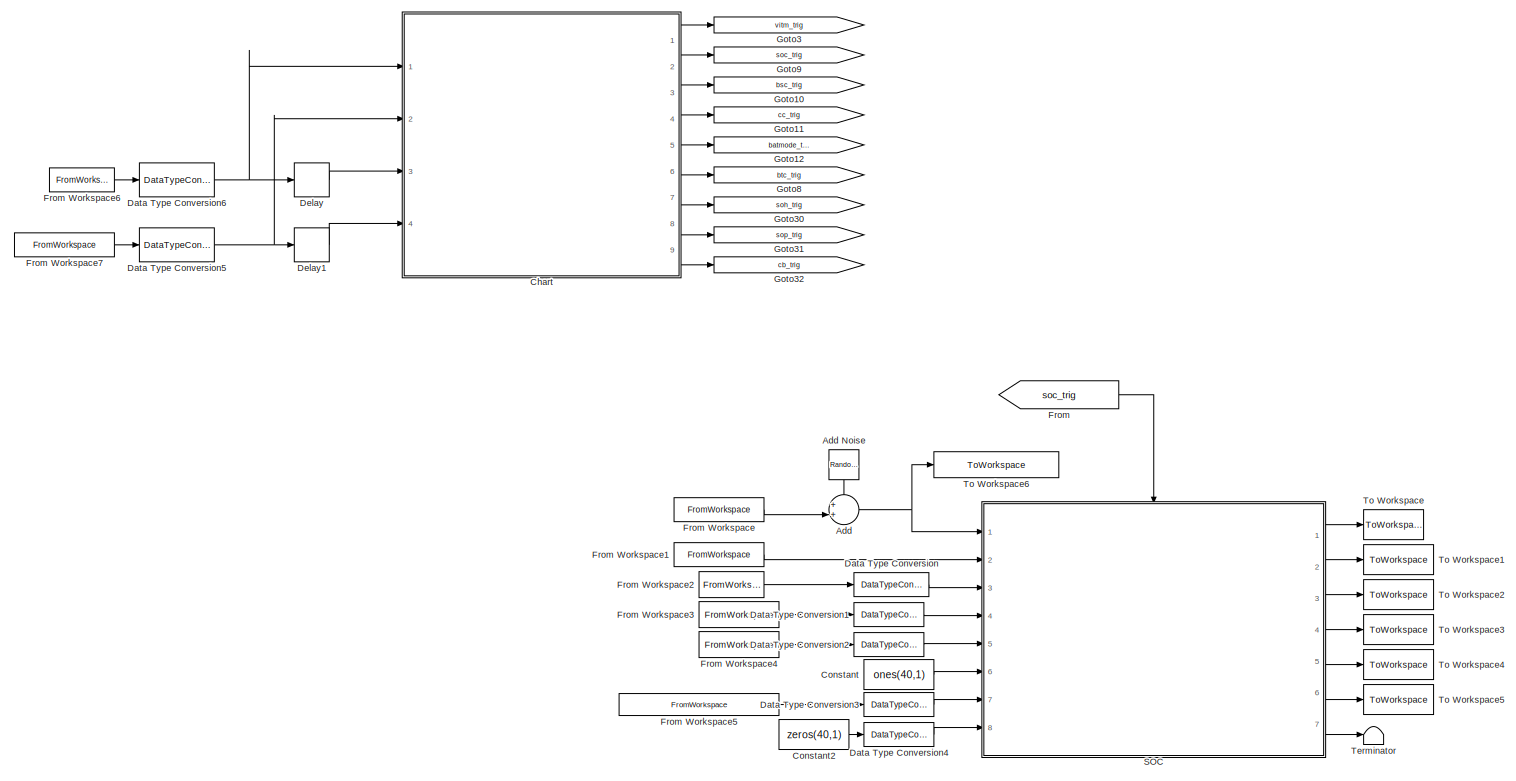
[diagram: root canvas - part 1/1, most of the canvas]
MODEL slx_c7a715e3729c
KIND model
CONFIG AbsTol = auto
CONFIG FixedStep = 0.1
CONFIG MaxStep = auto
CONFIG MinStep = auto
CONFIG RelTol = 1e-3
CONFIG SampleTimeConstraint = Unconstrained
CONFIG Solver = FixedStepDiscrete
CONFIG SolverMode = Auto
CONFIG SolverName = FixedStepDiscrete
CONFIG StartTime = 0.0
CONFIG StopTime = final_time
BLOCK [Sum] Add
  IconShape = round
  InputSameDT = off
  Inputs = ++|
  OutDataTypeStr = Inherit: Inherit via internal rule
  Ports = [2, 1]
  SaturateOnIntegerOverflow = off
BLOCK [RandomNumber] Add Noise
  SampleTime = 0.1
  Variance = current_sensor_variance
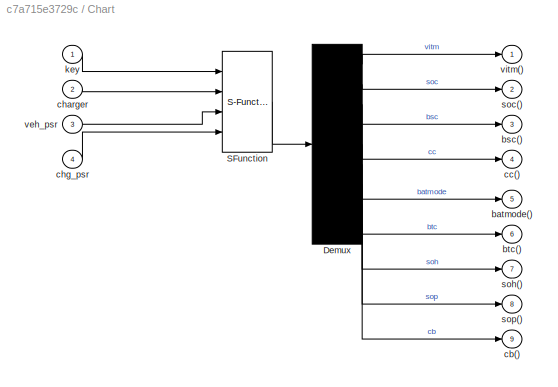
BLOCK [SubSystem] Chart
  ErrorFcn = Stateflow.Translate.translate
  PermitHierarchicalResolution = ExplicitOnly
  Ports = [4, 9]
  RequestExecContextInheritance = off
  SFBlockType = Chart
  TreatAsAtomicUnit = on
  Variant = off
BLOCK [Demux] Chart/ Demux 
  Outputs = 9
  Ports = [1, 9]
BLOCK [S-Function] Chart/ SFunction 
  EnableBusSupport = on
  FunctionName = sf_sfun
  PortCounts = [4 1]
  Ports = [4, 1]
  SFunctionDeploymentMode = off
  Tag = Stateflow S-Function OL_SOC 3
BLOCK [Outport] Chart/batmode()
  IconDisplay = Port number
  Port = 5
BLOCK [Outport] Chart/bsc()
  IconDisplay = Port number
  Port = 3
BLOCK [Outport] Chart/btc()
  IconDisplay = Port number
  Port = 6
BLOCK [Outport] Chart/cb()
  IconDisplay = Port number
  Port = 9
BLOCK [Outport] Chart/cc()
  IconDisplay = Port number
  Port = 4
BLOCK [Inport] Chart/charger
  IconDisplay = Port number
  Port = 2
BLOCK [Inport] Chart/chg_psr
  IconDisplay = Port number
  Port = 4
BLOCK [Inport] Chart/key
  IconDisplay = Port number
BLOCK [Outport] Chart/soc()
  IconDisplay = Port number
  Port = 2
BLOCK [Outport] Chart/soh()
  IconDisplay = Port number
  Port = 7
BLOCK [Outport] Chart/sop()
  IconDisplay = Port number
  Port = 8
BLOCK [Inport] Chart/veh_psr
  IconDisplay = Port number
  Port = 3
BLOCK [Outport] Chart/vitm()
  IconDisplay = Port number
BLOCK [Constant] Constant
  SampleTime = -1
  Value = ones(40,1)
BLOCK [Constant] Constant2
  SampleTime = -1
  Value = zeros(40,1)
BLOCK [DataTypeConversion] Data Type Conversion
  OutDataTypeStr = boolean
  RndMeth = Floor
  SaturateOnIntegerOverflow = off
BLOCK [DataTypeConversion] Data Type Conversion1
  OutDataTypeStr = boolean
  RndMeth = Floor
  SaturateOnIntegerOverflow = off
BLOCK [DataTypeConversion] Data Type Conversion2
  OutDataTypeStr = boolean
  RndMeth = Floor
  SaturateOnIntegerOverflow = off
BLOCK [DataTypeConversion] Data Type Conversion3
  OutDataTypeStr = boolean
  RndMeth = Floor
  SaturateOnIntegerOverflow = off
BLOCK [DataTypeConversion] Data Type Conversion4
  OutDataTypeStr = boolean
  RndMeth = Floor
  SaturateOnIntegerOverflow = off
BLOCK [DataTypeConversion] Data Type Conversion5
  OutDataTypeStr = uint8
  RndMeth = Floor
  SaturateOnIntegerOverflow = off
BLOCK [DataTypeConversion] Data Type Conversion6
  OutDataTypeStr = uint8
  RndMeth = Floor
  SaturateOnIntegerOverflow = off
BLOCK [Delay] Delay
  DelayLength = 0.2/0.1
  InputPortMap = u0
  Ports = [1, 1]
BLOCK [Delay] Delay1
  DelayLength = 0.2/0.1
  InputPortMap = u0
  Ports = [1, 1]
BLOCK [From] From
  GotoTag = soc_trig
BLOCK [FromWorkspace] From Workspace
  VariableName = test_pack_current
  ZeroCross = on
BLOCK [FromWorkspace] From Workspace1
  VariableName = test_cell_voltages
  ZeroCross = on
BLOCK [FromWorkspace] From Workspace2
  VariableName = test_main_cc
  ZeroCross = on
BLOCK [FromWorkspace] From Workspace3
  VariableName = test_pre_cc
  ZeroCross = on
BLOCK [FromWorkspace] From Workspace4
  VariableName = test_chg_cc
  ZeroCross = on
BLOCK [FromWorkspace] From Workspace5
  VariableName = test_bsc_charger_contactor_cmd
  ZeroCross = on
BLOCK [FromWorkspace] From Workspace6
  VariableName = key_data
  ZeroCross = on
BLOCK [FromWorkspace] From Workspace7
  VariableName = charger_button_data
  ZeroCross = on
BLOCK [Goto] Goto10
  GotoTag = bsc_trig
BLOCK [Goto] Goto11
  GotoTag = cc_trig
BLOCK [Goto] Goto12
  GotoTag = batmode_trig
BLOCK [Goto] Goto3
  GotoTag = vitm_trig
BLOCK [Goto] Goto30
  GotoTag = soh_trig
BLOCK [Goto] Goto31
  GotoTag = sop_trig
BLOCK [Goto] Goto32
  GotoTag = cb_trig
BLOCK [Goto] Goto8
  GotoTag = btc_trig
BLOCK [Goto] Goto9
  GotoTag = soc_trig
BLOCK [ModelReference] SOC
  CopyOfModelName = SOC.slx
  ModelNameDialog = SOC.slx
  ModelReferenceVersion = 1.297
  Ports = [8, 7, 0, 1]
  TriggerPortName = Trigger
  TriggerPortStatesWhenEnabling = held
  TriggerPortTriggerType = function-call
  Variant = off
BLOCK [Terminator] Terminator
BLOCK [ToWorkspace] To Workspace
  FixptAsFi = on
  MaxDataPoints = inf
  Ports = [1]
  SampleTime = -1
  Save2DSignal = 3-D array (concatenate along third dimension)
  SaveFormat = Timeseries
  VariableName = soc_all_cells
BLOCK [ToWorkspace] To Workspace1
  FixptAsFi = on
  MaxDataPoints = inf
  Ports = [1]
  SampleTime = -1
  Save2DSignal = 3-D array (concatenate along third dimension)
  SaveFormat = Timeseries
  VariableName = soc_customer
BLOCK [ToWorkspace] To Workspace2
  FixptAsFi = on
  MaxDataPoints = inf
  Ports = [1]
  SampleTime = -1
  Save2DSignal = 3-D array (concatenate along third dimension)
  SaveFormat = Timeseries
  VariableName = soc_max
BLOCK [ToWorkspace] To Workspace3
  FixptAsFi = on
  MaxDataPoints = inf
  Ports = [1]
  SampleTime = -1
  Save2DSignal = 3-D array (concatenate along third dimension)
  SaveFormat = Timeseries
  VariableName = soc_min
BLOCK [ToWorkspace] To Workspace4
  FixptAsFi = on
  MaxDataPoints = inf
  Ports = [1]
  SampleTime = -1
  Save2DSignal = 3-D array (concatenate along third dimension)
  SaveFormat = Timeseries
  VariableName = soc_pack
BLOCK [ToWorkspace] To Workspace5
  FixptAsFi = on
  MaxDataPoints = inf
  Ports = [1]
  SampleTime = -1
  Save2DSignal = 3-D array (concatenate along third dimension)
  SaveFormat = Timeseries
  VariableName = soc_rate_high
BLOCK [ToWorkspace] To Workspace6
  FixptAsFi = on
  MaxDataPoints = inf
  Ports = [1]
  SampleTime = -1
  Save2DSignal = 3-D array (concatenate along third dimension)
  SaveFormat = Timeseries
  VariableName = test_pack_current_w_noise
LINE Add Noise:1 -> Add:1
NET Add:1 -> SOC:1, To Workspace6:1
LINE Chart:1 -> Goto3:1
LINE Chart:2 -> Goto9:1
LINE Chart:3 -> Goto10:1
LINE Chart:4 -> Goto11:1
LINE Chart:5 -> Goto12:1
LINE Chart:6 -> Goto8:1
LINE Chart:7 -> Goto30:1
LINE Chart:8 -> Goto31:1
LINE Chart:9 -> Goto32:1
LINE Constant2:1 -> Data Type Conversion4:1
LINE Constant:1 -> SOC:6
LINE Data Type Conversion1:1 -> SOC:4
LINE Data Type Conversion2:1 -> SOC:5
LINE Data Type Conversion3:1 -> SOC:7
LINE Data Type Conversion4:1 -> SOC:8
NET Data Type Conversion5:1 -> Chart:2, Delay1:1
NET Data Type Conversion6:1 -> Chart:1, Delay:1
LINE Data Type Conversion:1 -> SOC:3
LINE Delay1:1 -> Chart:4
LINE Delay:1 -> Chart:3
LINE From Workspace1:1 -> SOC:2
LINE From Workspace2:1 -> Data Type Conversion:1
LINE From Workspace3:1 -> Data Type Conversion1:1
LINE From Workspace4:1 -> Data Type Conversion2:1
LINE From Workspace5:1 -> Data Type Conversion3:1
LINE From Workspace6:1 -> Data Type Conversion6:1
LINE From Workspace7:1 -> Data Type Conversion5:1
LINE From Workspace:1 -> Add:2
LINE From:1 -> SOC:trigger
LINE SOC:1 -> To Workspace:1
LINE SOC:2 -> To Workspace1:1
LINE SOC:3 -> To Workspace2:1
LINE SOC:4 -> To Workspace3:1
LINE SOC:5 -> To Workspace4:1
LINE SOC:6 -> To Workspace5:1
LINE SOC:7 -> Terminator:1
note: NET lines group one-source signal fan-out (src -> all destinations, sorted); 1:1 wires keep LINE
CHART Chart states=7 transitions=77
  STATE_LABEL 'main_chg'
  STATE_LABEL '{vitm;}'
  STATE_LABEL '{soc;}'
  STATE_LABEL '{bsc;}'
  STATE_LABEL '{soh;}'
  STATE_LABEL '{cc;}'
  STATE_LABEL '{batmode;}'
  STATE_LABEL '{btc;}'
  STATE_LABEL '{sop;}'
  STATE_LABEL '{cb;}'
  STATE_LABEL 'main_key'
  STATE_LABEL '{vitm;}'
  STATE_LABEL '{soc;}'
  STATE_LABEL '{bsc;}'
  STATE_LABEL '{soh;}'
  STATE_LABEL '{cc;}'
  STATE_LABEL '{batmode;}'
  STATE_LABEL '{btc;}'
  STATE_LABEL '{sop;}'
  STATE_LABEL '{cb;}'
  STATE_LABEL 'init_key'
  STATE_LABEL '{vitm;}'
  STATE_LABEL '{soc;}'
  STATE_LABEL '{bsc;}'
  STATE_LABEL '{soh;}'
  STATE_LABEL '{cc;}'
  STATE_LABEL '{batmode;}'
  STATE_LABEL '{btc;}'
  STATE_LABEL '{sop;}'
  STATE_LABEL '{cb;}'
  STATE_LABEL 'init_chg'
  STATE_LABEL '{vitm;}'
  STATE_LABEL '{soc;}'
  STATE_LABEL '{bsc;}'
  STATE_LABEL '{soh;}'
  STATE_LABEL '{cc;}'
  STATE_LABEL '{batmode;}'
  STATE_LABEL '{btc;}'
  STATE_LABEL '{sop;}'
  STATE_LABEL '{cb;}'
